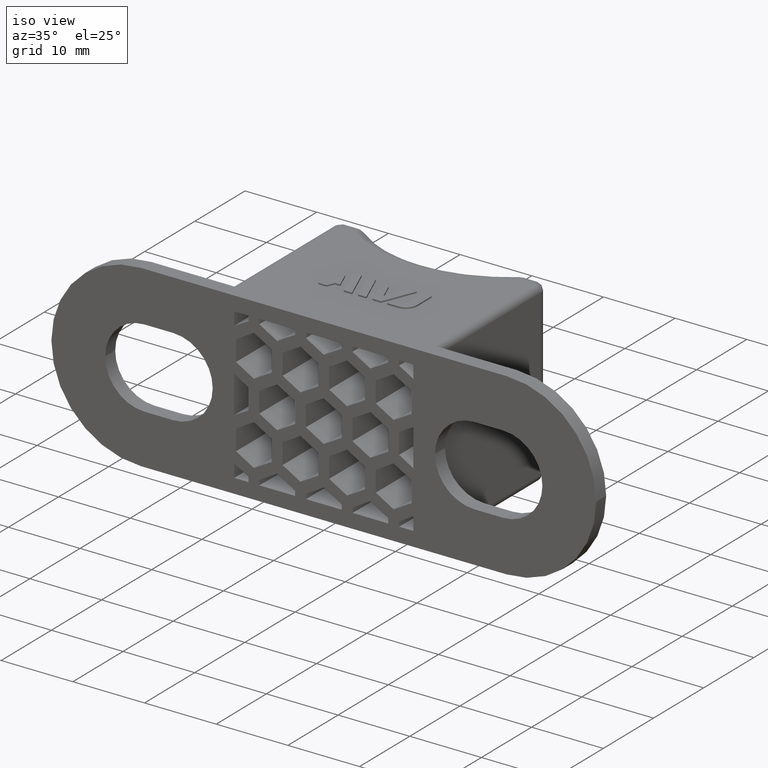
[diagram: clean part render]
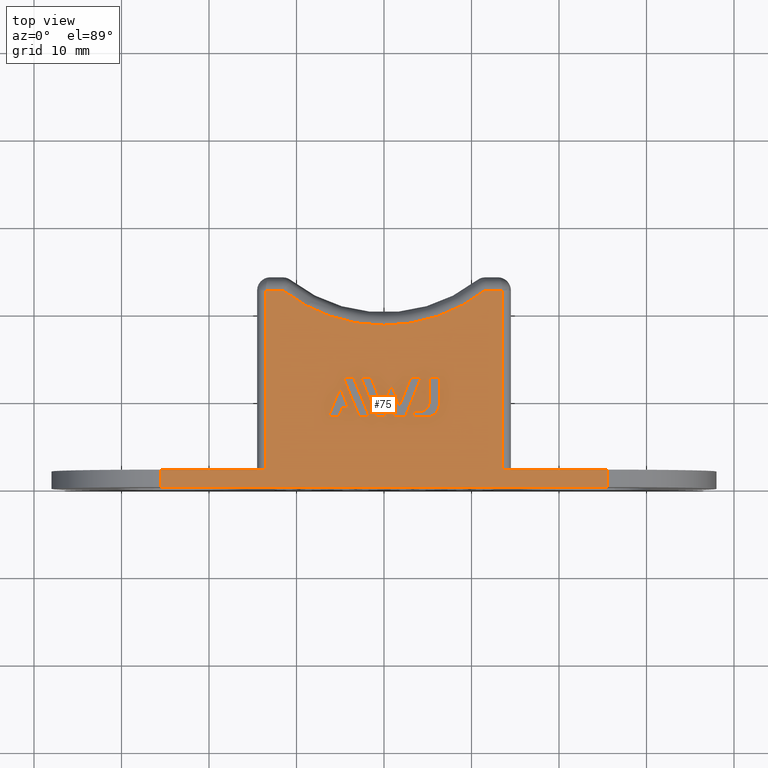
[diagram: tour spotlight — one face highlighted and labeled with its STEP entity id]
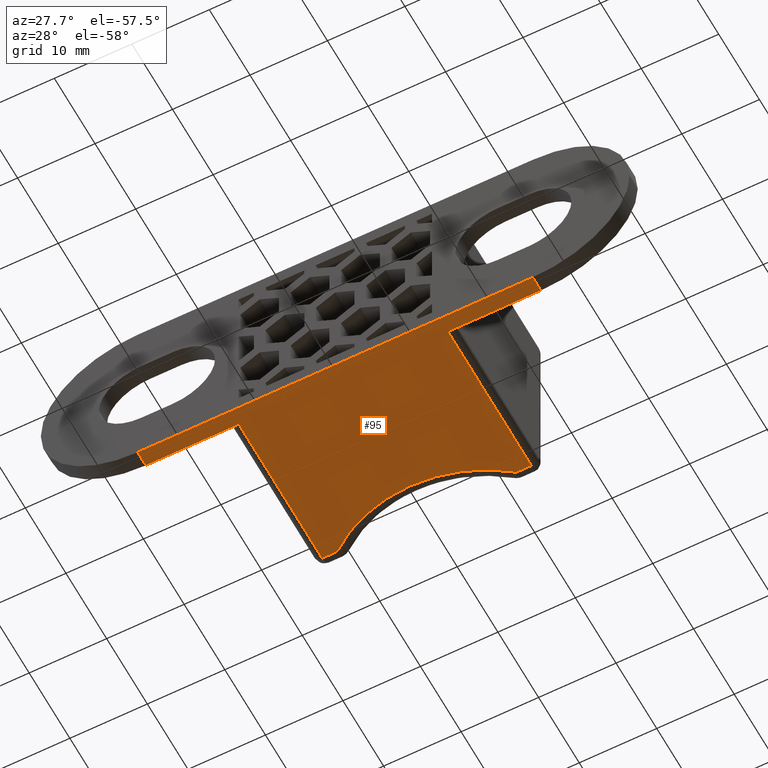
[diagram: tour spotlight — one face highlighted and labeled with its STEP entity id]
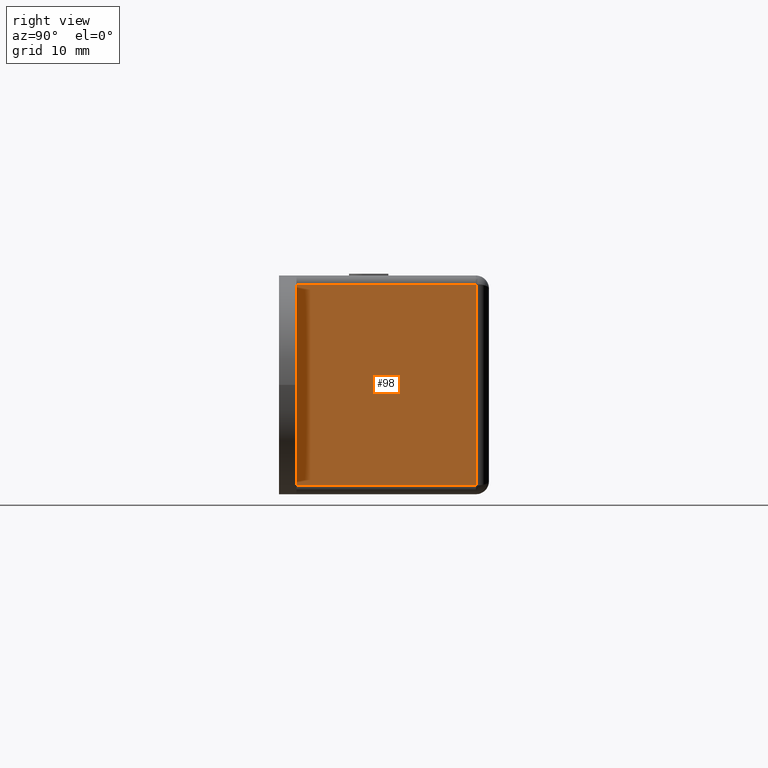
[diagram: tour spotlight — one face highlighted and labeled with its STEP entity id]
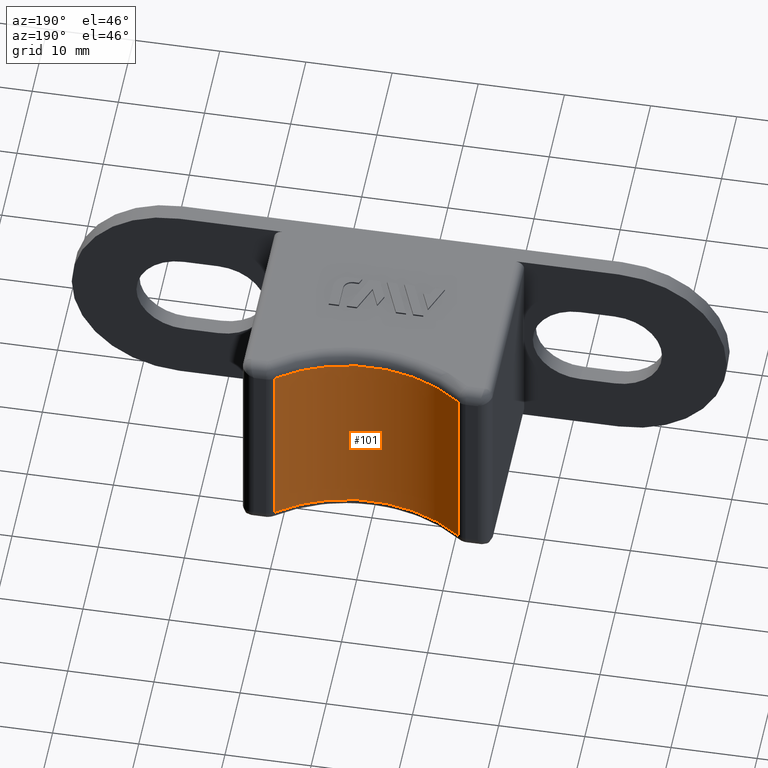
[diagram: tour spotlight — one face highlighted and labeled with its STEP entity id]
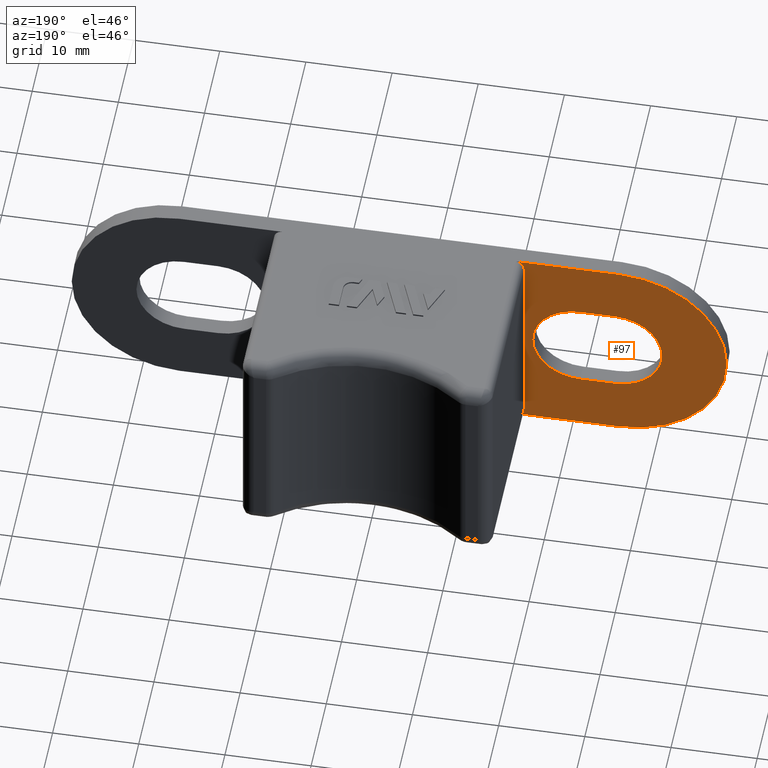
[diagram: tour spotlight — one face highlighted and labeled with its STEP entity id]
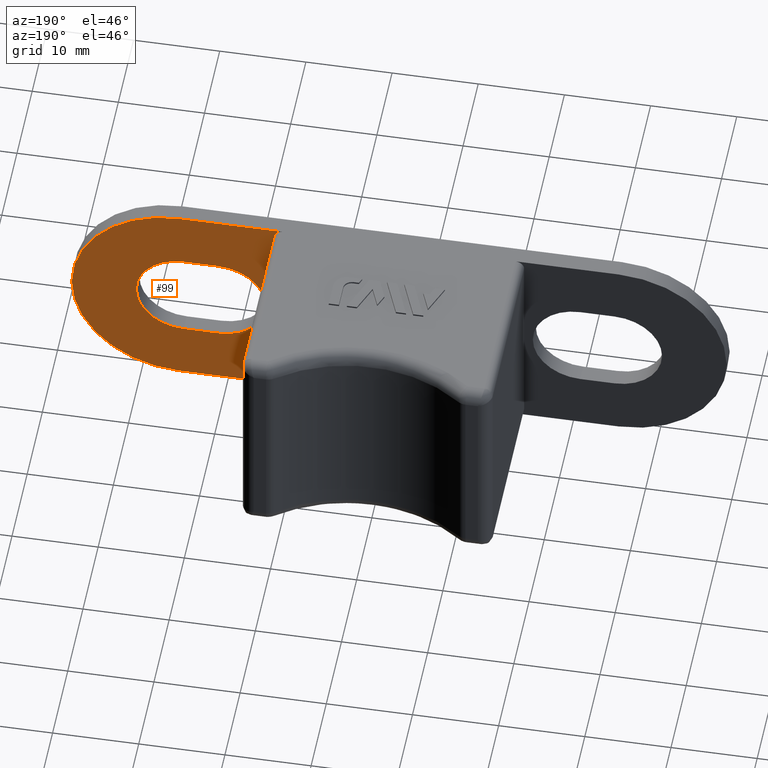
[diagram: tour spotlight — one face highlighted and labeled with its STEP entity id]
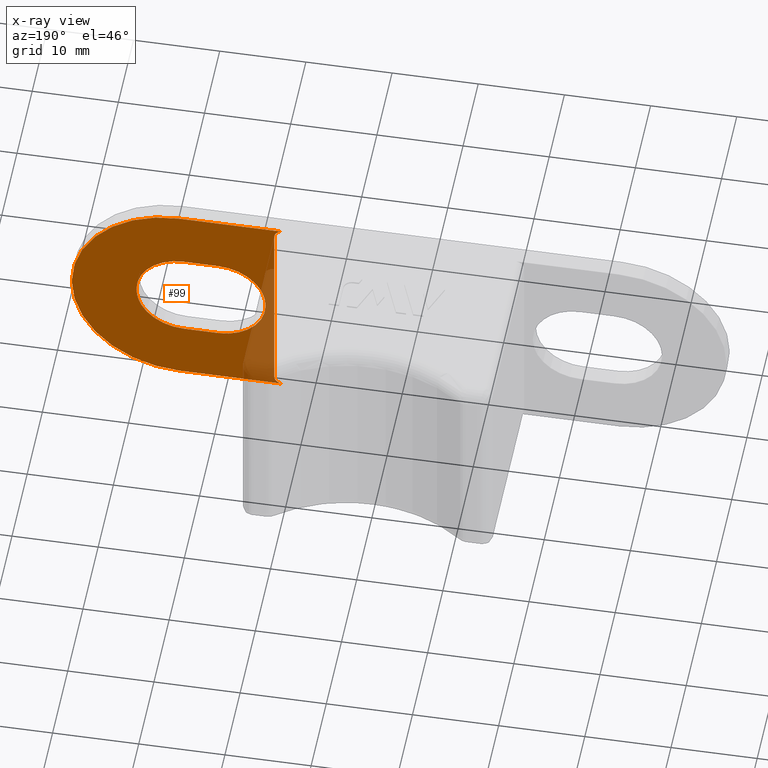
[diagram: x-ray of the same camera — body ghosted, this tour face saturated]
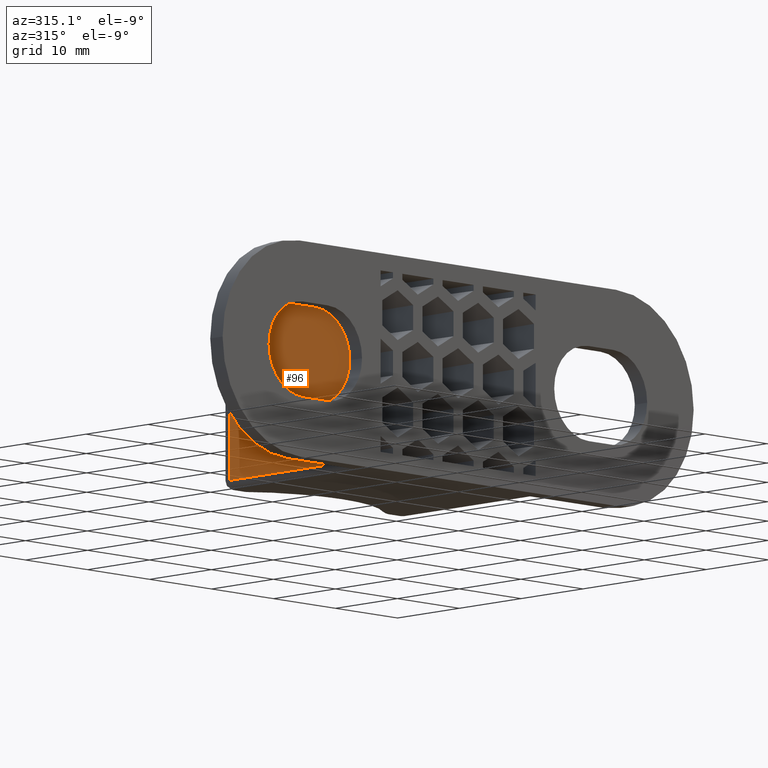
[diagram: tour spotlight — one face highlighted and labeled with its STEP entity id]
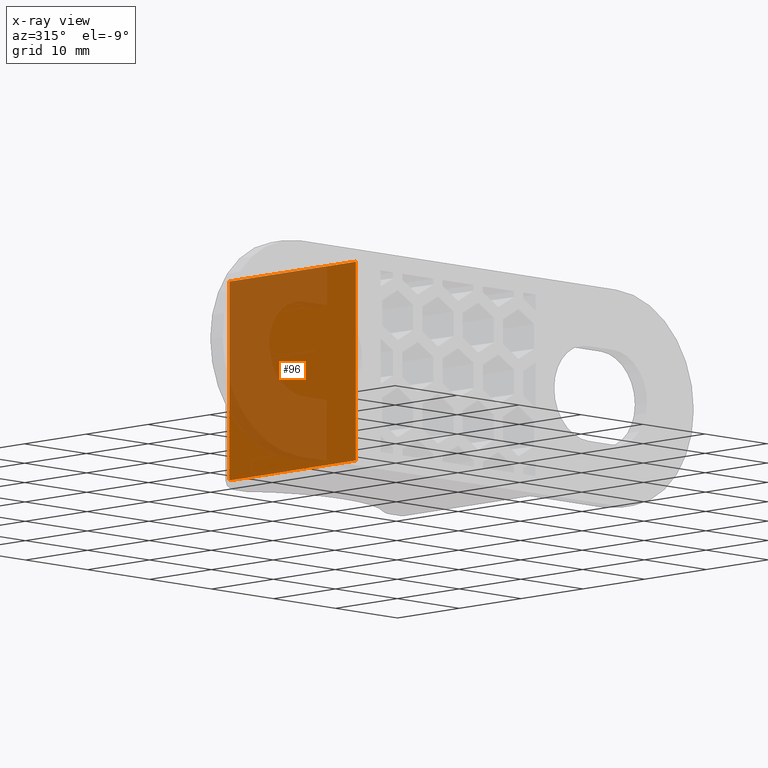
[diagram: x-ray of the same camera — body ghosted, this tour face saturated]
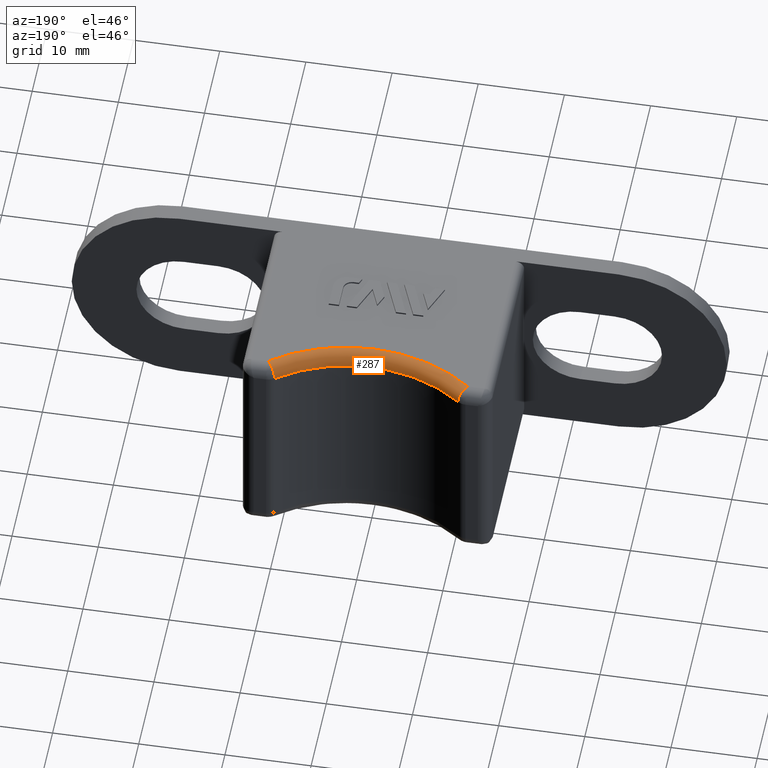
[diagram: tour spotlight — one face highlighted and labeled with its STEP entity id]
A machine part: a face-by-face anatomy tour. The part has 230 B-rep faces; the first image is the clean iso view, then the 8 largest visible faces are spotlighted one at a time (largest first), each with its STEP entity span.

Face 1 — top view, entity #75. In plain terms, the highlighted planar face has unit normal (0, 0, -1).
Definition (entity closure, byte-faithful):
#75 = ADVANCED_FACE( '', ( #306, #307, #308, #309, #310, #311 ), #312, .F. );
#306 = FACE_BOUND( '', #798, .T. );
#307 = FACE_BOUND( '', #799, .T. );
#308 = FACE_OUTER_BOUND( '', #800, .T. );
#309 = FACE_BOUND( '', #801, .T. );
#310 = FACE_BOUND( '', #802, .T. );
#311 = FACE_BOUND( '', #803, .T. );
#312 = PLANE( '', #804 );
#798 = EDGE_LOOP( '', ( #1818, #1819, #1820, #1821, #1822, #1823, #1824 ) );
#799 = EDGE_LOOP( '', ( #1825, #1826, #1827, #1828 ) );
#800 = EDGE_LOOP( '', ( #1829, #1830, #1831, #1832, #1833, #1834, #1835, #1836, #1837, #1838 ) );
#801 = EDGE_LOOP( '', ( #1839, #1840, #1841, #1842, #1843 ) );
#802 = EDGE_LOOP( '', ( #1844, #1845, #1846, #1847 ) );
#803 = EDGE_LOOP( '', ( #1848, #1849, #1850, #1851, #1852, #1853, #1854, #1855 ) );
#804 = AXIS2_PLACEMENT_3D( '', #1856, #1857, #1858 );
#1818 = ORIENTED_EDGE( '', *, *, #3648, .F. );
#1819 = ORIENTED_EDGE( '', *, *, #3649, .F. );
#1820 = ORIENTED_EDGE( '', *, *, #3650, .F. );
#1821 = ORIENTED_EDGE( '', *, *, #3651, .F. );
#1822 = ORIENTED_EDGE( '', *, *, #3652, .F. );
#1823 = ORIENTED_EDGE( '', *, *, #3653, .F. );
#1824 = ORIENTED_EDGE( '', *, *, #3654, .F. );
#1825 = ORIENTED_EDGE( '', *, *, #3655, .F. );
#1826 = ORIENTED_EDGE( '', *, *, #3656, .F. );
#1827 = ORIENTED_EDGE( '', *, *, #3657, .F. );
#1828 = ORIENTED_EDGE( '', *, *, #3658, .F. );
#1829 = ORIENTED_EDGE( '', *, *, #3659, .T. );
#1830 = ORIENTED_EDGE( '', *, *, #3660, .T. );
#1831 = ORIENTED_EDGE( '', *, *, #3661, .T. );
#1832 = ORIENTED_EDGE( '', *, *, #3662, .T. );
#1833 = ORIENTED_EDGE( '', *, *, #3663, .T. );
#1834 = ORIENTED_EDGE( '', *, *, #3664, .T. );
#1835 = ORIENTED_EDGE( '', *, *, #3665, .T. );
#1836 = ORIENTED_EDGE( '', *, *, #3666, .T. );
#1837 = ORIENTED_EDGE( '', *, *, #3667, .T. );
#1838 = ORIENTED_EDGE( '', *, *, #3668, .T. );
#1839 = ORIENTED_EDGE( '', *, *, #3669, .F. );
#1840 = ORIENTED_EDGE( '', *, *, #3670, .F. );
#1841 = ORIENTED_EDGE( '', *, *, #3671, .F. );
#1842 = ORIENTED_EDGE( '', *, *, #3672, .F. );
#1843 = ORIENTED_EDGE( '', *, *, #3673, .F. );
#1844 = ORIENTED_EDGE( '', *, *, #3674, .F. );
#1845 = ORIENTED_EDGE( '', *, *, #3675, .F. );
#1846 = ORIENTED_EDGE( '', *, *, #3676, .F. );
#1847 = ORIENTED_EDGE( '', *, *, #3677, .F. );
#1848 = ORIENTED_EDGE( '', *, *, #3678, .F. );
#1849 = ORIENTED_EDGE( '', *, *, #3679, .F. );
#1850 = ORIENTED_EDGE( '', *, *, #3680, .F. );
#1851 = ORIENTED_EDGE( '', *, *, #3681, .F. );
#1852 = ORIENTED_EDGE( '', *, *, #3682, .F. );
#1853 = ORIENTED_EDGE( '', *, *, #3683, .F. );
#1854 = ORIENTED_EDGE( '', *, *, #3684, .F. );
#1855 = ORIENTED_EDGE( '', *, *, #3685, .F. );
#1856 = CARTESIAN_POINT( '', ( 0.000000000000000, 37.2500000000000, 12.5000000000000 ) );
#1857 = DIRECTION( '', ( 0.000000000000000, 0.000000000000000, -1.00000000000000 ) );
#1858 = DIRECTION( '', ( 0.000000000000000, 1.00000000000000, 0.000000000000000 ) );
#3648 = EDGE_CURVE( '', #4224, #4225, #4226, .T. );
#3649 = EDGE_CURVE( '', #4227, #4224, #4228, .T. );
#3650 = EDGE_CURVE( '', #4229, #4227, #4230, .T. );
#3651 = EDGE_CURVE( '', #4231, #4229, #4232, .T. );
#3652 = EDGE_CURVE( '', #4233, #4231, #4234, .T. );
#3653 = EDGE_CURVE( '', #4235, #4233, #4236, .T. );
#3654 = EDGE_CURVE( '', #4225, #4235, #4237, .T. );
#3655 = EDGE_CURVE( '', #4238, #4239, #4240, .T. );
#3656 = EDGE_CURVE( '', #4241, #4238, #4242, .T. );
#3657 = EDGE_CURVE( '', #4243, #4241, #4244, .T. );
#3658 = EDGE_CURVE( '', #4239, #4243, #4245, .T. );
#3659 = EDGE_CURVE( '', #4246, #4247, #4248, .T. );
#3660 = EDGE_CURVE( '', #4247, #4249, #4250, .T. );
#3661 = EDGE_CURVE( '', #4249, #4251, #4252, .T. );
#3662 = EDGE_CURVE( '', #4251, #4253, #4254, .T. );
#3663 = EDGE_CURVE( '', #4253, #4255, #4256, .T. );
#3664 = EDGE_CURVE( '', #4255, #4257, #4258, .T. );
#3665 = EDGE_CURVE( '', #4257, #4259, #4260, .T. );
#3666 = EDGE_CURVE( '', #4259, #4261, #4262, .T. );
#3667 = EDGE_CURVE( '', #4261, #4263, #4264, .T. );
#3668 = EDGE_CURVE( '', #4263, #4246, #4265, .T. );
#3669 = EDGE_CURVE( '', #4266, #4267, #4268, .T. );
#3670 = EDGE_CURVE( '', #4269, #4266, #4270, .T. );
#3671 = EDGE_CURVE( '', #4271, #4269, #4272, .T. );
#3672 = EDGE_CURVE( '', #4273, #4271, #4274, .T. );
#3673 = EDGE_CURVE( '', #4267, #4273, #4275, .T. );
#3674 = EDGE_CURVE( '', #4276, #4277, #4278, .T. );
#3675 = EDGE_CURVE( '', #4279, #4276, #4280, .T. );
#3676 = EDGE_CURVE( '', #4281, #4279, #4282, .T. );
#3677 = EDGE_CURVE( '', #4277, #4281, #4283, .T. );
#3678 = EDGE_CURVE( '', #4284, #4285, #4286, .T. );
#3679 = EDGE_CURVE( '', #4287, #4284, #4288, .T. );
#3680 = EDGE_CURVE( '', #4289, #4287, #4290, .T. );
#3681 = EDGE_CURVE( '', #4291, #4289, #4292, .T. );
#3682 = EDGE_CURVE( '', #4293, #4291, #4294, .T. );
#3683 = EDGE_CURVE( '', #4295, #4293, #4296, .T. );
#3684 = EDGE_CURVE( '', #4297, #4295, #4298, .T. );
#3685 = EDGE_CURVE( '', #4285, #4297, #4299, .T. );
#4224 = VERTEX_POINT( '', #5176 );
#4225 = VERTEX_POINT( '', #5177 );
#4226 = LINE( '', #5178, #5179 );
#4227 = VERTEX_POINT( '', #5180 );
#4228 = LINE( '', #5181, #5182 );
#4229 = VERTEX_POINT( '', #5183 );
#4230 = LINE( '', #5184, #5185 );
#4231 = VERTEX_POINT( '', #5186 );
#4232 = LINE( '', #5187, #5188 );
#4233 = VERTEX_POINT( '', #5189 );
#4234 = LINE( '', #5190, #5191 );
#4235 = VERTEX_POINT( '', #5192 );
#4236 = LINE( '', #5193, #5194 );
#4237 = LINE( '', #5195, #5196 );
#4238 = VERTEX_POINT( '', #5197 );
#4239 = VERTEX_POINT( '', #5198 );
#4240 = LINE( '', #5199, #5200 );
#4241 = VERTEX_POINT( '', #5201 );
#4242 = LINE( '', #5202, #5203 );
#4243 = VERTEX_POINT( '', #5204 );
#4244 = LINE( '', #5205, #5206 );
#4245 = LINE( '', #5207, #5208 );
#4246 = VERTEX_POINT( '', #5209 );
#4247 = VERTEX_POINT( '', #5210 );
#4248 = CIRCLE( '', #5211, 18.7500000000000 );
#4249 = VERTEX_POINT( '', #5212 );
#4250 = LINE( '', #5213, #5214 );
#4251 = VERTEX_POINT( '', #5215 );
#4252 = LINE( '', #5216, #5217 );
#4253 = VERTEX_POINT( '', #5218 );
#4254 = LINE( '', #5219, #5220 );
#4255 = VERTEX_POINT( '', #5221 );
#4256 = LINE( '', #5222, #5223 );
#4257 = VERTEX_POINT( '', #5224 );
#4258 = LINE( '', #5225, #5226 );
#4259 = VERTEX_POINT( '', #5227 );
#4260 = LINE( '', #5228, #5229 );
#4261 = VERTEX_POINT( '', #5230 );
#4262 = LINE( '', #5231, #5232 );
#4263 = VERTEX_POINT( '', #5233 );
#4264 = LINE( '', #5234, #5235 );
#4265 = LINE( '', #5236, #5237 );
#4266 = VERTEX_POINT( '', #5238 );
#4267 = VERTEX_POINT( '', #5239 );
#4268 = LINE( '', #5240, #5241 );
#4269 = VERTEX_POINT( '', #5242 );
#4270 = LINE( '', #5243, #5244 );
#4271 = VERTEX_POINT( '', #5245 );
#4272 = LINE( '', #5246, #5247 );
#4273 = VERTEX_POINT( '', #5248 );
#4274 = LINE( '', #5249, #5250 );
#4275 = LINE( '', #5251, #5252 );
#4276 = VERTEX_POINT( '', #5253 );
#4277 = VERTEX_POINT( '', #5254 );
#4278 = LINE( '', #5255, #5256 );
#4279 = VERTEX_POINT( '', #5257 );
#4280 = LINE( '', #5258, #5259 );
#4281 = VERTEX_POINT( '', #5260 );
#4282 = LINE( '', #5261, #5262 );
#4283 = LINE( '', #5263, #5264 );
#4284 = VERTEX_POINT( '', #5265 );
#4285 = VERTEX_POINT( '', #5266 );
#4286 = CIRCLE( '', #5267, 1.50000000000000 );
#4287 = VERTEX_POINT( '', #5268 );
#4288 = LINE( '', #5269, #5270 );
#4289 = VERTEX_POINT( '', #5271 );
#4290 = LINE( '', #5272, #5273 );
#4291 = VERTEX_POINT( '', #5274 );
#4292 = LINE( '', #5275, #5276 );
#4293 = VERTEX_POINT( '', #5277 );
#4294 = CIRCLE( '', #5278, 0.999999999999997 );
#4295 = VERTEX_POINT( '', #5279 );
#4296 = LINE( '', #5280, #5281 );
#4297 = VERTEX_POINT( '', #5282 );
#4298 = LINE( '', #5283, #5284 );
#4299 = LINE( '', #5285, #5286 );
#5176 = CARTESIAN_POINT( '', ( 2.40489711829795, 8.00000000000000, 12.5000000000000 ) );
#5177 = CARTESIAN_POINT( '', ( 4.22159390166011, 12.4967077130809, 12.5000000000000 ) );
#5178 = CARTESIAN_POINT( '', ( 2.40489711829795, 8.00000000000000, 12.5000000000000 ) );
#5179 = VECTOR( '', #6570, 1000.00000000000 );
#5180 = CARTESIAN_POINT( '', ( 1.17656065381540, 8.00000000000000, 12.5000000000000 ) );
#5181 = CARTESIAN_POINT( '', ( 1.17656065381540, 8.00000000000000, 12.5000000000000 ) );
#5182 = VECTOR( '', #6571, 1000.00000000000 );
#5183 = CARTESIAN_POINT( '', ( 0.250796616378179, 10.2909463051131, 12.5000000000000 ) );
#5184 = CARTESIAN_POINT( '', ( 0.250796616378178, 10.2909463051131, 12.5000000000000 ) );
#5185 = VECTOR( '', #6572, 1000.00000000000 );
#5186 = CARTESIAN_POINT( '', ( 0.831793978898428, 11.7292171844870, 12.5000000000000 ) );
#5187 = CARTESIAN_POINT( '', ( 0.831793978898429, 11.7292171844869, 12.5000000000000 ) );
#5188 = VECTOR( '', #6573, 1000.00000000000 );
#5189 = CARTESIAN_POINT( '', ( 1.79060116130350, 9.35619645562918, 12.5000000000000 ) );
#5190 = CARTESIAN_POINT( '', ( 1.79060116130350, 9.35619645562919, 12.5000000000000 ) );
#5191 = VECTOR( '', #6574, 1000.00000000000 );
#5192 = CARTESIAN_POINT( '', ( 3.05959917661961, 12.4967077130809, 12.5000000000000 ) );
#5193 = CARTESIAN_POINT( '', ( 3.05959917661961, 12.4967077130809, 12.5000000000000 ) );
#5194 = VECTOR( '', #6575, 1000.00000000000 );
#5195 = CARTESIAN_POINT( '', ( 4.22159390166011, 12.4967077130809, 12.5000000000000 ) );
#5196 = VECTOR( '', #6576, 1000.00000000000 );
#5197 = CARTESIAN_POINT( '', ( -1.65762156620353, 8.00000000000000, 12.5000000000000 ) );
#5198 = CARTESIAN_POINT( '', ( -3.47460385195514, 12.4967077130809, 12.5000000000000 ) );
#5199 = CARTESIAN_POINT( '', ( -1.65762156620353, 8.00000000000000, 12.5000000000000 ) );
#5200 = VECTOR( '', #6577, 1000.00000000000 );
#5201 = CARTESIAN_POINT( '', ( -2.81951861937395, 8.00000000000000, 12.5000000000000 ) );
#5202 = CARTESIAN_POINT( '', ( -2.81951861937395, 8.00000000000000, 12.5000000000000 ) );
#5203 = VECTOR( '', #6578, 1000.00000000000 );
#5204 = CARTESIAN_POINT( '', ( -4.63624545561922, 12.4967077130809, 12.5000000000000 ) );
#5205 = CARTESIAN_POINT( '', ( -4.63624545561922, 12.4967077130809, 12.5000000000000 ) );
#5206 = VECTOR( '', #6579, 1000.00000000000 );
#5207 = CARTESIAN_POINT( '', ( -3.47460385195514, 12.4967077130809, 12.5000000000000 ) );
#5208 = VECTOR( '', #6580, 1000.00000000000 );
#5209 = CARTESIAN_POINT( '', ( 11.5758369027905, 22.5000000000000, 12.5000000000000 ) );
#5210 = CARTESIAN_POINT( '', ( -11.5758369027905, 22.5000000000002, 12.5000000000000 ) );
#5211 = AXIS2_PLACEMENT_3D( '', #6581, #6582, #6583 );
#5212 = CARTESIAN_POINT( '', ( -13.5000000000000, 22.5000000000000, 12.5000000000000 ) );
#5213 = CARTESIAN_POINT( '', ( -13.5000000000000, 22.5000000000000, 12.5000000000000 ) );
#5214 = VECTOR( '', #6584, 1000.00000000000 );
#5215 = CARTESIAN_POINT( '', ( -13.5000000000000, 1.99999999999999, 12.5000000000000 ) );
#5216 = CARTESIAN_POINT( '', ( -13.5000000000000, 1.99999999999999, 12.5000000000000 ) );
#5217 = VECTOR( '', #6585, 1000.00000000000 );
#5218 = CARTESIAN_POINT( '', ( -25.5000000000000, 1.99999999999999, 12.5000000000000 ) );
#5219 = CARTESIAN_POINT( '', ( -14.5000000000000, 1.99999999999999, 12.5000000000000 ) );
#5220 = VECTOR( '', #6586, 1000.00000000000 );
#5221 = CARTESIAN_POINT( '', ( -25.5000000000000, -6.93889390390723E-015, 12.5000000000000 ) );
#5222 = CARTESIAN_POINT( '', ( -25.5000000000000, -6.93889390390723E-015, 12.5000000000000 ) );
#5223 = VECTOR( '', #6587, 1000.00000000000 );
#5224 = CARTESIAN_POINT( '', ( 25.5000000000000, -6.93889390390723E-015, 12.5000000000000 ) );
#5225 = CARTESIAN_POINT( '', ( -38.0000000000000, -6.93889390390723E-015, 12.5000000000000 ) );
#5226 = VECTOR( '', #6588, 1000.00000000000 );
#5227 = CARTESIAN_POINT( '', ( 25.5000000000000, 1.99999999999999, 12.5000000000000 ) );
#5228 = CARTESIAN_POINT( '', ( 25.5000000000000, 1.99999999999999, 12.5000000000000 ) );
#5229 = VECTOR( '', #6589, 1000.00000000000 );
#5230 = CARTESIAN_POINT( '', ( 13.5000000000000, 1.99999999999999, 12.5000000000000 ) );
#5231 = CARTESIAN_POINT( '', ( 38.0000000000000, 1.99999999999999, 12.5000000000000 ) );
#5232 = VECTOR( '', #6590, 1000.00000000000 );
#5233 = CARTESIAN_POINT( '', ( 13.5000000000000, 22.5000000000000, 12.5000000000000 ) );
#5234 = CARTESIAN_POINT( '', ( 13.5000000000000, 24.0000000000000, 12.5000000000000 ) );
#5235 = VECTOR( '', #6591, 1000.00000000000 );
#5236 = CARTESIAN_POINT( '', ( 11.0453610171873, 22.5000000000000, 12.5000000000000 ) );
#5237 = VECTOR( '', #6592, 1000.00000000000 );
#5238 = CARTESIAN_POINT( '', ( -5.19199839633592, 8.00000000000000, 12.5000000000000 ) );
#5239 = CARTESIAN_POINT( '', ( -4.77208448722876, 9.03856753415103, 12.5000000000000 ) );
#5240 = CARTESIAN_POINT( '', ( -5.19199839633592, 8.00000000000000, 12.5000000000000 ) );
#5241 = VECTOR( '', #6593, 1000.00000000000 );
#5242 = CARTESIAN_POINT( '', ( -6.35364000000000, 8.00000000000000, 12.5000000000000 ) );
#5243 = CARTESIAN_POINT( '', ( -6.35364000000000, 8.00000000000000, 12.5000000000000 ) );
#5244 = VECTOR( '', #6594, 1000.00000000000 );
#5245 = CARTESIAN_POINT( '', ( -4.99163582471184, 11.3715127433957, 12.5000000000000 ) );
#5246 = CARTESIAN_POINT( '', ( -4.99163582471184, 11.3715127433957, 12.5000000000000 ) );
#5247 = VECTOR( '', #6595, 1000.00000000000 );
#5248 = CARTESIAN_POINT( '', ( -4.04950047920620, 9.03856753415103, 12.5000000000000 ) );
#5249 = CARTESIAN_POINT( '', ( -4.04950047920620, 9.03856753415103, 12.5000000000000 ) );
#5250 = VECTOR( '', #6596, 1000.00000000000 );
#5251 = CARTESIAN_POINT( '', ( -4.77208448722876, 9.03856753415103, 12.5000000000000 ) );
#5252 = VECTOR( '', #6597, 1000.00000000000 );
#5253 = CARTESIAN_POINT( '', ( 0.340474419546954, 8.00000000000000, 12.5000000000000 ) );
#5254 = CARTESIAN_POINT( '', ( -1.47650786620465, 12.4967077130809, 12.5000000000000 ) );
#5255 = CARTESIAN_POINT( '', ( 0.340474419546954, 8.00000000000000, 12.5000000000000 ) );
#5256 = VECTOR( '', #6598, 1000.00000000000 );
#5257 = CARTESIAN_POINT( '', ( -0.821505279051991, 8.00000000000000, 12.5000000000000 ) );
#5258 = CARTESIAN_POINT( '', ( -0.821505279051992, 8.00000000000000, 12.5000000000000 ) );
#5259 = VECTOR( '', #6599, 1000.00000000000 );
#5260 = CARTESIAN_POINT( '', ( -2.63848756480360, 12.4967077130809, 12.5000000000000 ) );
#5261 = CARTESIAN_POINT( '', ( -2.63848756480360, 12.4967077130809, 12.5000000000000 ) );
#5262 = VECTOR( '', #6600, 1000.00000000000 );
#5263 = CARTESIAN_POINT( '', ( -1.47650786620465, 12.4967077130809, 12.5000000000000 ) );
#5264 = VECTOR( '', #6601, 1000.00000000000 );
#5265 = CARTESIAN_POINT( '', ( 4.81907477182051, 8.00000000000000, 12.5000000000000 ) );
#5266 = CARTESIAN_POINT( '', ( 6.31907477182050, 9.50000000000000, 12.5000000000000 ) );
#5267 = AXIS2_PLACEMENT_3D( '', #6602, #6603, #6604 );
#5268 = CARTESIAN_POINT( '', ( 3.24098335256638, 8.00000000000000, 12.5000000000000 ) );
#5269 = CARTESIAN_POINT( '', ( 3.24098335256638, 8.00000000000000, 12.5000000000000 ) );
#5270 = VECTOR( '', #6605, 1000.00000000000 );
#5271 = CARTESIAN_POINT( '', ( 3.50517861036021, 8.65390620930045, 12.5000000000000 ) );
#5272 = CARTESIAN_POINT( '', ( 3.50517861036022, 8.65390620930045, 12.5000000000000 ) );
#5273 = VECTOR( '', #6606, 1000.00000000000 );
#5274 = CARTESIAN_POINT( '', ( 4.14390185782692, 8.65390620930044, 12.5000000000000 ) );
#5275 = CARTESIAN_POINT( '', ( 4.14390185782692, 8.65390620930045, 12.5000000000000 ) );
#5276 = VECTOR( '', #6607, 1000.00000000000 );
#5277 = CARTESIAN_POINT( '', ( 5.14390185782692, 9.65390620930044, 12.5000000000000 ) );
#5278 = AXIS2_PLACEMENT_3D( '', #6608, #6609, #6610 );
#5279 = CARTESIAN_POINT( '', ( 5.14390185782692, 12.4967077130809, 12.5000000000000 ) );
#5280 = CARTESIAN_POINT( '', ( 5.14390185782692, 12.4967077130809, 12.5000000000000 ) );
#5281 = VECTOR( '', #6611, 1000.00000000000 );
#5282 = CARTESIAN_POINT( '', ( 6.31907477182050, 12.4967077130809, 12.5000000000000 ) );
#5283 = CARTESIAN_POINT( '', ( 6.31907477182050, 12.4967077130809, 12.5000000000000 ) );
#5284 = VECTOR( '', #6612, 1000.00000000000 );
#5285 = CARTESIAN_POINT( '', ( 6.31907477182050, 9.50000000000000, 12.5000000000000 ) );
#5286 = VECTOR( '', #6613, 1000.00000000000 );
#6570 = DIRECTION( '', ( 0.374590451773198, 0.927190376050330, 0.000000000000000 ) );
#6571 = DIRECTION( '', ( 1.00000000000000, 0.000000000000000, 0.000000000000000 ) );
#6572 = DIRECTION( '', ( 0.374662832411421, -0.927161130553612, 0.000000000000000 ) );
#6573 = DIRECTION( '', ( -0.374550179126525, -0.927206645422846, 0.000000000000000 ) );
#6574 = DIRECTION( '', ( -0.374621565025663, 0.927177805503196, 0.000000000000000 ) );
#6575 = DIRECTION( '', ( -0.374644435760503, -0.927168564368796, 0.000000000000000 ) );
#6576 = DIRECTION( '', ( -1.00000000000000, 0.000000000000000, 0.000000000000000 ) );
#6577 = DIRECTION( '', ( -0.374641058409019, 0.927169929060563, 0.000000000000000 ) );
#6578 = DIRECTION( '', ( 1.00000000000000, 0.000000000000000, 0.000000000000000 ) );
#6579 = DIRECTION( '', ( 0.374595778945159, -0.927188223823226, 0.000000000000000 ) );
#6580 = DIRECTION( '', ( -1.00000000000000, 0.000000000000000, 0.000000000000000 ) );
#6581 = CARTESIAN_POINT( '', ( 0.000000000000000, 37.2500000000000, 12.5000000000000 ) );
#6582 = DIRECTION( '', ( 0.000000000000000, 0.000000000000000, -1.00000000000000 ) );
#6583 = DIRECTION( '', ( -1.00000000000000, 0.000000000000000, 0.000000000000000 ) );
#6584 = DIRECTION( '', ( -1.00000000000000, 0.000000000000000, 0.000000000000000 ) );
#6585 = DIRECTION( '', ( -6.07153216591882E-017, -1.00000000000000, 0.000000000000000 ) );
#6586 = DIRECTION( '', ( -1.00000000000000, 0.000000000000000, 0.000000000000000 ) );
#6587 = DIRECTION( '', ( -6.93889390390723E-017, -1.00000000000000, 0.000000000000000 ) );
#6588 = DIRECTION( '', ( 1.00000000000000, 0.000000000000000, 0.000000000000000 ) );
#6589 = DIRECTION( '', ( 6.93889390390723E-017, 1.00000000000000, 0.000000000000000 ) );
#6590 = DIRECTION( '', ( -1.00000000000000, 0.000000000000000, 0.000000000000000 ) );
#6591 = DIRECTION( '', ( 6.07153216591882E-017, 1.00000000000000, 0.000000000000000 ) );
#6592 = DIRECTION( '', ( -1.00000000000000, 0.000000000000000, 0.000000000000000 ) );
#6593 = DIRECTION( '', ( 0.374840934415178, 0.927089140205383, 0.000000000000000 ) );
#6594 = DIRECTION( '', ( 1.00000000000000, 5.55111512312578E-017, 0.000000000000000 ) );
#6595 = DIRECTION( '', ( -0.374565126786346, -0.927200607094025, 0.000000000000000 ) );
#6596 = DIRECTION( '', ( -0.374457717202846, 0.927243990558706, 0.000000000000000 ) );
#6597 = DIRECTION( '', ( 1.00000000000000, 0.000000000000000, 0.000000000000000 ) );
#6598 = DIRECTION( '', ( -0.374641058409019, 0.927169929060563, 0.000000000000000 ) );
#6599 = DIRECTION( '', ( 1.00000000000000, -2.22044604925031E-016, 0.000000000000000 ) );
#6600 = DIRECTION( '', ( 0.374641058409019, -0.927169929060563, 0.000000000000000 ) );
#6601 = DIRECTION( '', ( -1.00000000000000, 2.22044604925031E-016, 0.000000000000000 ) );
#6602 = CARTESIAN_POINT( '', ( 4.81907477182050, 9.50000000000000, 12.5000000000000 ) );
#6603 = DIRECTION( '', ( 0.000000000000000, 0.000000000000000, 1.00000000000000 ) );
#6604 = DIRECTION( '', ( 0.000000000000000, -1.00000000000000, 0.000000000000000 ) );
#6605 = DIRECTION( '', ( 1.00000000000000, 0.000000000000000, 0.000000000000000 ) );
#6606 = DIRECTION( '', ( -0.374606593415912, -0.927183854566787, 0.000000000000000 ) );
#6607 = DIRECTION( '', ( -1.00000000000000, 0.000000000000000, 0.000000000000000 ) );
#6608 = CARTESIAN_POINT( '', ( 4.14390185782692, 9.65390620930044, 12.5000000000000 ) );
#6609 = DIRECTION( '', ( 0.000000000000000, 0.000000000000000, -1.00000000000000 ) );
#6610 = DIRECTION( '', ( 1.00000000000000, 0.000000000000000, 0.000000000000000 ) );
#6611 = DIRECTION( '', ( -6.07153216591882E-017, -1.00000000000000, 0.000000000000000 ) );
#6612 = DIRECTION( '', ( -1.00000000000000, 0.000000000000000, 0.000000000000000 ) );
#6613 = DIRECTION( '', ( 6.07153216591882E-017, 1.00000000000000, 0.000000000000000 ) );

Face 2 — auxiliary view, entity #95. In plain terms, the highlighted planar face has unit normal (0, 0, -1).
Definition (entity closure, byte-faithful):
#95 = ADVANCED_FACE( '', ( #376 ), #377, .T. );
#376 = FACE_OUTER_BOUND( '', #1132, .T. );
#377 = PLANE( '', #1133 );
#1132 = EDGE_LOOP( '', ( #2121, #2122, #2123, #2124, #2125, #2126, #2127, #2128, #2129, #2130 ) );
#1133 = AXIS2_PLACEMENT_3D( '', #2131, #2132, #2133 );
#2121 = ORIENTED_EDGE( '', *, *, #3867, .T. );
#2122 = ORIENTED_EDGE( '', *, *, #3846, .T. );
#2123 = ORIENTED_EDGE( '', *, *, #3868, .T. );
#2124 = ORIENTED_EDGE( '', *, *, #3869, .T. );
#2125 = ORIENTED_EDGE( '', *, *, #3870, .T. );
#2126 = ORIENTED_EDGE( '', *, *, #3871, .F. );
#2127 = ORIENTED_EDGE( '', *, *, #3872, .T. );
#2128 = ORIENTED_EDGE( '', *, *, #3748, .F. );
#2129 = ORIENTED_EDGE( '', *, *, #3866, .T. );
#2130 = ORIENTED_EDGE( '', *, *, #3873, .F. );
#2131 = CARTESIAN_POINT( '', ( 0.000000000000000, 37.2500000000000, -12.5000000000000 ) );
#2132 = DIRECTION( '', ( 0.000000000000000, 0.000000000000000, -1.00000000000000 ) );
#2133 = DIRECTION( '', ( 0.000000000000000, 1.00000000000000, 0.000000000000000 ) );
#3748 = EDGE_CURVE( '', #4422, #4424, #4425, .T. );
#3846 = EDGE_CURVE( '', #4605, #4609, #4611, .F. );
#3866 = EDGE_CURVE( '', #4422, #4644, #4646, .F. );
#3867 = EDGE_CURVE( '', #4647, #4605, #4648, .F. );
#3868 = EDGE_CURVE( '', #4609, #4649, #4650, .F. );
#3869 = EDGE_CURVE( '', #4649, #4651, #4652, .F. );
#3870 = EDGE_CURVE( '', #4651, #4653, #4654, .F. );
#3871 = EDGE_CURVE( '', #4655, #4653, #4656, .T. );
#3872 = EDGE_CURVE( '', #4655, #4424, #4657, .F. );
#3873 = EDGE_CURVE( '', #4647, #4644, #4658, .T. );
#4422 = VERTEX_POINT( '', #5465 );
#4424 = VERTEX_POINT( '', #5467 );
#4425 = LINE( '', #5468, #5469 );
#4605 = VERTEX_POINT( '', #5733 );
#4609 = VERTEX_POINT( '', #5737 );
#4611 = LINE( '', #5739, #5740 );
#4644 = VERTEX_POINT( '', #5787 );
#4646 = LINE( '', #5789, #5790 );
#4647 = VERTEX_POINT( '', #5791 );
#4648 = LINE( '', #5792, #5793 );
#4649 = VERTEX_POINT( '', #5794 );
#4650 = CIRCLE( '', #5795, 18.7500000000000 );
#4651 = VERTEX_POINT( '', #5796 );
#4652 = LINE( '', #5797, #5798 );
#4653 = VERTEX_POINT( '', #5799 );
#4654 = LINE( '', #5800, #5801 );
#4655 = VERTEX_POINT( '', #5802 );
#4656 = LINE( '', #5803, #5804 );
#4657 = LINE( '', #5805, #5806 );
#4658 = LINE( '', #5807, #5808 );
#5465 = CARTESIAN_POINT( '', ( -25.5000000000000, -6.93889390390723E-015, -12.5000000000000 ) );
#5467 = CARTESIAN_POINT( '', ( 25.5000000000000, -6.93889390390723E-015, -12.5000000000000 ) );
#5468 = CARTESIAN_POINT( '', ( -38.0000000000000, -6.93889390390723E-015, -12.5000000000000 ) );
#5469 = VECTOR( '', #6688, 1000.00000000000 );
#5733 = CARTESIAN_POINT( '', ( -13.5000000000000, 22.5000000000000, -12.5000000000000 ) );
#5737 = CARTESIAN_POINT( '', ( -11.5758369027905, 22.5000000000002, -12.5000000000000 ) );
#5739 = CARTESIAN_POINT( '', ( 0.000000000000000, 22.5000000000000, -12.5000000000000 ) );
#5740 = VECTOR( '', #6812, 1000.00000000000 );
#5787 = CARTESIAN_POINT( '', ( -25.5000000000000, 1.99999999999999, -12.5000000000000 ) );
#5789 = CARTESIAN_POINT( '', ( -25.5000000000000, 37.2500000000000, -12.5000000000000 ) );
#5790 = VECTOR( '', #6842, 1000.00000000000 );
#5791 = CARTESIAN_POINT( '', ( -13.5000000000000, 1.99999999999999, -12.5000000000000 ) );
#5792 = CARTESIAN_POINT( '', ( -13.5000000000000, 37.2500000000000, -12.5000000000000 ) );
#5793 = VECTOR( '', #6843, 1000.00000000000 );
#5794 = CARTESIAN_POINT( '', ( 11.5758369027905, 22.5000000000000, -12.5000000000000 ) );
#5795 = AXIS2_PLACEMENT_3D( '', #6844, #6845, #6846 );
#5796 = CARTESIAN_POINT( '', ( 13.5000000000000, 22.5000000000000, -12.5000000000000 ) );
#5797 = CARTESIAN_POINT( '', ( 0.000000000000000, 22.5000000000000, -12.5000000000000 ) );
#5798 = VECTOR( '', #6847, 1000.00000000000 );
#5799 = CARTESIAN_POINT( '', ( 13.5000000000000, 1.99999999999999, -12.5000000000000 ) );
#5800 = CARTESIAN_POINT( '', ( 13.5000000000000, 37.2500000000000, -12.5000000000000 ) );
#5801 = VECTOR( '', #6848, 1000.00000000000 );
#5802 = CARTESIAN_POINT( '', ( 25.5000000000000, 1.99999999999999, -12.5000000000000 ) );
#5803 = CARTESIAN_POINT( '', ( 38.0000000000000, 1.99999999999999, -12.5000000000000 ) );
#5804 = VECTOR( '', #6849, 1000.00000000000 );
#5805 = CARTESIAN_POINT( '', ( 25.5000000000000, 37.2500000000000, -12.5000000000000 ) );
#5806 = VECTOR( '', #6850, 1000.00000000000 );
#5807 = CARTESIAN_POINT( '', ( -14.5000000000000, 1.99999999999999, -12.5000000000000 ) );
#5808 = VECTOR( '', #6851, 1000.00000000000 );
#6688 = DIRECTION( '', ( 1.00000000000000, 0.000000000000000, 0.000000000000000 ) );
#6812 = DIRECTION( '', ( -1.00000000000000, 0.000000000000000, 0.000000000000000 ) );
#6842 = DIRECTION( '', ( -6.93889390390723E-017, -1.00000000000000, 0.000000000000000 ) );
#6843 = DIRECTION( '', ( -6.07153216591882E-017, -1.00000000000000, 0.000000000000000 ) );
#6844 = CARTESIAN_POINT( '', ( 0.000000000000000, 37.2500000000000, -12.5000000000000 ) );
#6845 = DIRECTION( '', ( 0.000000000000000, 0.000000000000000, -1.00000000000000 ) );
#6846 = DIRECTION( '', ( -1.00000000000000, 0.000000000000000, 0.000000000000000 ) );
#6847 = DIRECTION( '', ( -1.00000000000000, 0.000000000000000, 0.000000000000000 ) );
#6848 = DIRECTION( '', ( 6.07153216591882E-017, 1.00000000000000, 0.000000000000000 ) );
#6849 = DIRECTION( '', ( -1.00000000000000, 0.000000000000000, 0.000000000000000 ) );
#6850 = DIRECTION( '', ( 6.93889390390723E-017, 1.00000000000000, 0.000000000000000 ) );
#6851 = DIRECTION( '', ( -1.00000000000000, 0.000000000000000, 0.000000000000000 ) );

Face 3 — right view, entity #98. In plain terms, the highlighted planar face has unit normal (1, -0, 0).
Definition (entity closure, byte-faithful):
#98 = ADVANCED_FACE( '', ( #383 ), #384, .T. );
#383 = FACE_OUTER_BOUND( '', #1139, .T. );
#384 = PLANE( '', #1140 );
#1139 = EDGE_LOOP( '', ( #2157, #2158, #2159, #2160 ) );
#1140 = AXIS2_PLACEMENT_3D( '', #2161, #2162, #2163 );
#2157 = ORIENTED_EDGE( '', *, *, #3886, .T. );
#2158 = ORIENTED_EDGE( '', *, *, #3887, .T. );
#2159 = ORIENTED_EDGE( '', *, *, #3888, .T. );
#2160 = ORIENTED_EDGE( '', *, *, #3889, .F. );
#2161 = CARTESIAN_POINT( '', ( 14.5000000000000, 1.99999999999999, -12.5000000000000 ) );
#2162 = DIRECTION( '', ( 1.00000000000000, -6.07153216591882E-017, 0.000000000000000 ) );
#2163 = DIRECTION( '', ( -6.07153216591882E-017, -1.00000000000000, 0.000000000000000 ) );
#3886 = EDGE_CURVE( '', #4679, #4680, #4681, .T. );
#3887 = EDGE_CURVE( '', #4680, #4682, #4683, .T. );
#3888 = EDGE_CURVE( '', #4682, #4684, #4685, .F. );
#3889 = EDGE_CURVE( '', #4679, #4684, #4686, .T. );
#4679 = VERTEX_POINT( '', #5834 );
#4680 = VERTEX_POINT( '', #5835 );
#4681 = LINE( '', #5836, #5837 );
#4682 = VERTEX_POINT( '', #5838 );
#4683 = LINE( '', #5839, #5840 );
#4684 = VERTEX_POINT( '', #5841 );
#4685 = LINE( '', #5842, #5843 );
#4686 = LINE( '', #5844, #5845 );
#5834 = CARTESIAN_POINT( '', ( 14.5000000000000, 1.99999999999999, -11.5000000000000 ) );
#5835 = CARTESIAN_POINT( '', ( 14.5000000000000, 22.5000000000000, -11.5000000000000 ) );
#5836 = CARTESIAN_POINT( '', ( 14.5000000000000, 1.99999999999999, -11.5000000000000 ) );
#5837 = VECTOR( '', #6878, 1000.00000000000 );
#5838 = CARTESIAN_POINT( '', ( 14.5000000000000, 22.5000000000000, 11.5000000000000 ) );
#5839 = CARTESIAN_POINT( '', ( 14.5000000000000, 22.5000000000000, -12.5000000000000 ) );
#5840 = VECTOR( '', #6879, 1000.00000000000 );
#5841 = CARTESIAN_POINT( '', ( 14.5000000000000, 1.99999999999999, 11.5000000000000 ) );
#5842 = CARTESIAN_POINT( '', ( 14.5000000000000, 1.99999999999999, 11.5000000000000 ) );
#5843 = VECTOR( '', #6880, 1000.00000000000 );
#5844 = CARTESIAN_POINT( '', ( 14.5000000000000, 1.99999999999999, -12.5000000000000 ) );
#5845 = VECTOR( '', #6881, 1000.00000000000 );
#6878 = DIRECTION( '', ( 6.07153216591882E-017, 1.00000000000000, 0.000000000000000 ) );
#6879 = DIRECTION( '', ( 0.000000000000000, 0.000000000000000, 1.00000000000000 ) );
#6880 = DIRECTION( '', ( 6.07153216591882E-017, 1.00000000000000, 0.000000000000000 ) );
#6881 = DIRECTION( '', ( 0.000000000000000, 0.000000000000000, 1.00000000000000 ) );

Face 4 — auxiliary view, entity #101. In plain terms, the highlighted cylindrical surface (partial cylindrical patch) has radius 17.25 mm, axis along (0, 0, -1).
Definition (entity closure, byte-faithful):
#101 = ADVANCED_FACE( '', ( #390 ), #391, .F. );
#390 = FACE_OUTER_BOUND( '', #1146, .T. );
#391 = CYLINDRICAL_SURFACE( '', #1147, 17.2500000000000 );
#1146 = EDGE_LOOP( '', ( #2187, #2188, #2189, #2190 ) );
#1147 = AXIS2_PLACEMENT_3D( '', #2191, #2192, #2193 );
#2187 = ORIENTED_EDGE( '', *, *, #3902, .T. );
#2188 = ORIENTED_EDGE( '', *, *, #3903, .T. );
#2189 = ORIENTED_EDGE( '', *, *, #3904, .T. );
#2190 = ORIENTED_EDGE( '', *, *, #3905, .T. );
#2191 = CARTESIAN_POINT( '', ( 0.000000000000000, 37.2500000000000, -12.5000000000000 ) );
#2192 = DIRECTION( '', ( 0.000000000000000, 0.000000000000000, -1.00000000000000 ) );
#2193 = DIRECTION( '', ( 0.000000000000000, -1.00000000000000, 0.000000000000000 ) );
#3902 = EDGE_CURVE( '', #4707, #4615, #4708, .T. );
#3903 = EDGE_CURVE( '', #4615, #4709, #4710, .T. );
#3904 = EDGE_CURVE( '', #4709, #4711, #4712, .F. );
#3905 = EDGE_CURVE( '', #4711, #4707, #4713, .F. );
#4615 = VERTEX_POINT( '', #5745 );
#4707 = VERTEX_POINT( '', #5870 );
#4708 = CIRCLE( '', #5871, 17.2500000000000 );
#4709 = VERTEX_POINT( '', #5872 );
#4710 = LINE( '', #5873, #5874 );
#4711 = VERTEX_POINT( '', #5875 );
#4712 = CIRCLE( '', #5876, 17.2500000000000 );
#4713 = LINE( '', #5877, #5878 );
#5745 = CARTESIAN_POINT( '', ( -10.6497699505670, 23.6800000000000, -11.0000000000000 ) );
#5870 = CARTESIAN_POINT( '', ( 10.6497699505670, 23.6800000000000, -11.0000000000000 ) );
#5871 = AXIS2_PLACEMENT_3D( '', #6910, #6911, #6912 );
#5872 = CARTESIAN_POINT( '', ( -10.6497699505670, 23.6800000000000, 11.0000000000000 ) );
#5873 = CARTESIAN_POINT( '', ( -10.6497699505670, 23.6800000000000, -12.5000000000000 ) );
#5874 = VECTOR( '', #6913, 1000.00000000000 );
#5875 = CARTESIAN_POINT( '', ( 10.6497699505670, 23.6800000000000, 11.0000000000000 ) );
#5876 = AXIS2_PLACEMENT_3D( '', #6914, #6915, #6916 );
#5877 = CARTESIAN_POINT( '', ( 10.6497699505670, 23.6800000000000, -12.5000000000000 ) );
#5878 = VECTOR( '', #6917, 1000.00000000000 );
#6910 = CARTESIAN_POINT( '', ( 0.000000000000000, 37.2500000000000, -11.0000000000000 ) );
#6911 = DIRECTION( '', ( 0.000000000000000, 0.000000000000000, -1.00000000000000 ) );
#6912 = DIRECTION( '', ( -1.00000000000000, 0.000000000000000, 0.000000000000000 ) );
#6913 = DIRECTION( '', ( 0.000000000000000, 0.000000000000000, 1.00000000000000 ) );
#6914 = CARTESIAN_POINT( '', ( 0.000000000000000, 37.2500000000000, 11.0000000000000 ) );
#6915 = DIRECTION( '', ( 0.000000000000000, 0.000000000000000, -1.00000000000000 ) );
#6916 = DIRECTION( '', ( -1.00000000000000, 0.000000000000000, 0.000000000000000 ) );
#6917 = DIRECTION( '', ( 0.000000000000000, 0.000000000000000, 1.00000000000000 ) );

Face 5 — auxiliary view, entity #97. In plain terms, the highlighted planar face has unit normal (0, 1, 0).
Definition (entity closure, byte-faithful):
#97 = ADVANCED_FACE( '', ( #380, #381 ), #382, .T. );
#380 = FACE_OUTER_BOUND( '', #1136, .T. );
#381 = FACE_BOUND( '', #1137, .T. );
#382 = PLANE( '', #1138 );
#1136 = EDGE_LOOP( '', ( #2141, #2142, #2143, #2144, #2145, #2146, #2147 ) );
#1137 = EDGE_LOOP( '', ( #2148, #2149, #2150, #2151, #2152, #2153 ) );
#1138 = AXIS2_PLACEMENT_3D( '', #2154, #2155, #2156 );
#2141 = ORIENTED_EDGE( '', *, *, #3865, .T. );
#2142 = ORIENTED_EDGE( '', *, *, #3877, .T. );
#2143 = ORIENTED_EDGE( '', *, *, #3662, .F. );
#2144 = ORIENTED_EDGE( '', *, *, #3878, .T. );
#2145 = ORIENTED_EDGE( '', *, *, #3876, .F. );
#2146 = ORIENTED_EDGE( '', *, *, #3879, .T. );
#2147 = ORIENTED_EDGE( '', *, *, #3873, .T. );
#2148 = ORIENTED_EDGE( '', *, *, #3880, .T. );
#2149 = ORIENTED_EDGE( '', *, *, #3881, .T. );
#2150 = ORIENTED_EDGE( '', *, *, #3882, .T. );
#2151 = ORIENTED_EDGE( '', *, *, #3883, .T. );
#2152 = ORIENTED_EDGE( '', *, *, #3884, .T. );
#2153 = ORIENTED_EDGE( '', *, *, #3885, .T. );
#2154 = CARTESIAN_POINT( '', ( -14.5000000000000, 1.99999999999999, -12.5000000000000 ) );
#2155 = DIRECTION( '', ( 0.000000000000000, 1.00000000000000, 0.000000000000000 ) );
#2156 = DIRECTION( '', ( 1.00000000000000, 0.000000000000000, 0.000000000000000 ) );
#3662 = EDGE_CURVE( '', #4251, #4253, #4254, .T. );
#3865 = EDGE_CURVE( '', #4644, #4642, #4645, .T. );
#3873 = EDGE_CURVE( '', #4647, #4644, #4658, .T. );
#3876 = EDGE_CURVE( '', #4661, #4659, #4663, .T. );
#3877 = EDGE_CURVE( '', #4642, #4253, #4664, .T. );
#3878 = EDGE_CURVE( '', #4251, #4659, #4665, .F. );
#3879 = EDGE_CURVE( '', #4661, #4647, #4666, .F. );
#3880 = EDGE_CURVE( '', #4667, #4668, #4669, .T. );
#3881 = EDGE_CURVE( '', #4668, #4670, #4671, .T. );
#3882 = EDGE_CURVE( '', #4670, #4672, #4673, .T. );
#3883 = EDGE_CURVE( '', #4672, #4674, #4675, .T. );
#3884 = EDGE_CURVE( '', #4674, #4676, #4677, .T. );
#3885 = EDGE_CURVE( '', #4676, #4667, #4678, .T. );
#4251 = VERTEX_POINT( '', #5215 );
#4253 = VERTEX_POINT( '', #5218 );
#4254 = LINE( '', #5219, #5220 );
#4642 = VERTEX_POINT( '', #5784 );
#4644 = VERTEX_POINT( '', #5787 );
#4645 = CIRCLE( '', #5788, 12.5000000000000 );
#4647 = VERTEX_POINT( '', #5791 );
#4658 = LINE( '', #5807, #5808 );
#4659 = VERTEX_POINT( '', #5809 );
#4661 = VERTEX_POINT( '', #5812 );
#4663 = LINE( '', #5815, #5816 );
#4664 = CIRCLE( '', #5817, 12.5000000000000 );
#4665 = CIRCLE( '', #5818, 1.00000000000000 );
#4666 = CIRCLE( '', #5819, 1.00000000000000 );
#4667 = VERTEX_POINT( '', #5820 );
#4668 = VERTEX_POINT( '', #5821 );
#4669 = CIRCLE( '', #5822, 5.50000000000000 );
#4670 = VERTEX_POINT( '', #5823 );
#4671 = CIRCLE( '', #5824, 5.50000000000000 );
#4672 = VERTEX_POINT( '', #5825 );
#4673 = LINE( '', #5826, #5827 );
#4674 = VERTEX_POINT( '', #5828 );
#4675 = CIRCLE( '', #5829, 5.50000000000000 );
#4676 = VERTEX_POINT( '', #5830 );
#4677 = CIRCLE( '', #5831, 5.50000000000000 );
#4678 = LINE( '', #5832, #5833 );
#5215 = CARTESIAN_POINT( '', ( -13.5000000000000, 1.99999999999999, 12.5000000000000 ) );
#5218 = CARTESIAN_POINT( '', ( -25.5000000000000, 1.99999999999999, 12.5000000000000 ) );
#5219 = CARTESIAN_POINT( '', ( -14.5000000000000, 1.99999999999999, 12.5000000000000 ) );
#5220 = VECTOR( '', #6586, 1000.00000000000 );
#5784 = CARTESIAN_POINT( '', ( -38.0000000000000, 1.99999999999999, 0.000000000000000 ) );
#5787 = CARTESIAN_POINT( '', ( -25.5000000000000, 1.99999999999999, -12.5000000000000 ) );
#5788 = AXIS2_PLACEMENT_3D( '', #6839, #6840, #6841 );
#5791 = CARTESIAN_POINT( '', ( -13.5000000000000, 1.99999999999999, -12.5000000000000 ) );
#5807 = CARTESIAN_POINT( '', ( -14.5000000000000, 1.99999999999999, -12.5000000000000 ) );
#5808 = VECTOR( '', #6851, 1000.00000000000 );
#5809 = CARTESIAN_POINT( '', ( -14.5000000000000, 1.99999999999999, 11.5000000000000 ) );
#5812 = CARTESIAN_POINT( '', ( -14.5000000000000, 1.99999999999999, -11.5000000000000 ) );
#5815 = CARTESIAN_POINT( '', ( -14.5000000000000, 1.99999999999999, -12.5000000000000 ) );
#5816 = VECTOR( '', #6854, 1000.00000000000 );
#5817 = AXIS2_PLACEMENT_3D( '', #6855, #6856, #6857 );
#5818 = AXIS2_PLACEMENT_3D( '', #6858, #6859, #6860 );
#5819 = AXIS2_PLACEMENT_3D( '', #6861, #6862, #6863 );
#5820 = CARTESIAN_POINT( '', ( -25.0000000000000, 2.00000200008459, 5.50000000000000 ) );
#5821 = CARTESIAN_POINT( '', ( -30.5000000000000, 2.00000200008459, 3.46944695195361E-015 ) );
#5822 = AXIS2_PLACEMENT_3D( '', #6864, #6865, #6866 );
#5823 = CARTESIAN_POINT( '', ( -25.0000000000000, 2.00000200008459, -5.50000000000000 ) );
#5824 = AXIS2_PLACEMENT_3D( '', #6867, #6868, #6869 );
#5825 = CARTESIAN_POINT( '', ( -21.0000000000000, 2.00000200008459, -5.50000000000000 ) );
#5826 = CARTESIAN_POINT( '', ( -25.0000000000000, 2.00000200008459, -5.50000000000000 ) );
#5827 = VECTOR( '', #6870, 1000.00000000000 );
#5828 = CARTESIAN_POINT( '', ( -15.5000000000000, 2.00000200008459, 0.000000000000000 ) );
#5829 = AXIS2_PLACEMENT_3D( '', #6871, #6872, #6873 );
#5830 = CARTESIAN_POINT( '', ( -21.0000000000000, 2.00000200008459, 5.50000000000000 ) );
#5831 = AXIS2_PLACEMENT_3D( '', #6874, #6875, #6876 );
#5832 = CARTESIAN_POINT( '', ( -21.0000000000000, 2.00000200008459, 5.50000000000000 ) );
#5833 = VECTOR( '', #6877, 1000.00000000000 );
#6586 = DIRECTION( '', ( -1.00000000000000, 0.000000000000000, 0.000000000000000 ) );
#6839 = CARTESIAN_POINT( '', ( -25.5000000000000, 1.99999999999999, 0.000000000000000 ) );
#6840 = DIRECTION( '', ( 0.000000000000000, 1.00000000000000, 0.000000000000000 ) );
#6841 = DIRECTION( '', ( 0.000000000000000, 0.000000000000000, 1.00000000000000 ) );
#6851 = DIRECTION( '', ( -1.00000000000000, 0.000000000000000, 0.000000000000000 ) );
#6854 = DIRECTION( '', ( 0.000000000000000, 0.000000000000000, 1.00000000000000 ) );
#6855 = CARTESIAN_POINT( '', ( -25.5000000000000, 1.99999999999999, 0.000000000000000 ) );
#6856 = DIRECTION( '', ( 0.000000000000000, 1.00000000000000, 0.000000000000000 ) );
#6857 = DIRECTION( '', ( 0.000000000000000, 0.000000000000000, 1.00000000000000 ) );
#6858 = CARTESIAN_POINT( '', ( -13.5000000000000, 1.99999999999999, 11.5000000000000 ) );
#6859 = DIRECTION( '', ( 0.000000000000000, 1.00000000000000, 0.000000000000000 ) );
#6860 = DIRECTION( '', ( 0.000000000000000, 0.000000000000000, 1.00000000000000 ) );
#6861 = CARTESIAN_POINT( '', ( -13.5000000000000, 1.99999999999999, -11.5000000000000 ) );
#6862 = DIRECTION( '', ( 0.000000000000000, 1.00000000000000, 0.000000000000000 ) );
#6863 = DIRECTION( '', ( 0.000000000000000, 0.000000000000000, 1.00000000000000 ) );
#6864 = CARTESIAN_POINT( '', ( -25.0000000000000, 2.00000200008459, 2.60208521396521E-015 ) );
#6865 = DIRECTION( '', ( 0.000000000000000, -1.00000000000000, 0.000000000000000 ) );
#6866 = DIRECTION( '', ( 1.15648231731787E-016, 0.000000000000000, 1.00000000000000 ) );
#6867 = CARTESIAN_POINT( '', ( -25.0000000000000, 2.00000200008459, 8.67361737988404E-016 ) );
#6868 = DIRECTION( '', ( 0.000000000000000, -1.00000000000000, 0.000000000000000 ) );
#6869 = DIRECTION( '', ( -1.00000000000000, 0.000000000000000, -4.20539024479227E-017 ) );
#6870 = DIRECTION( '', ( 1.00000000000000, 0.000000000000000, -1.15648231731787E-016 ) );
#6871 = CARTESIAN_POINT( '', ( -21.0000000000000, 2.00000200008459, 0.000000000000000 ) );
#6872 = DIRECTION( '', ( 0.000000000000000, -1.00000000000000, 0.000000000000000 ) );
#6873 = DIRECTION( '', ( -1.15648231731787E-016, 0.000000000000000, -1.00000000000000 ) );
#6874 = CARTESIAN_POINT( '', ( -21.0000000000000, 2.00000200008459, 1.73472347597681E-015 ) );
#6875 = DIRECTION( '', ( 0.000000000000000, -1.00000000000000, 0.000000000000000 ) );
#6876 = DIRECTION( '', ( 1.00000000000000, 0.000000000000000, 4.20539024479226E-017 ) );
#6877 = DIRECTION( '', ( -1.00000000000000, 0.000000000000000, 1.15648231731787E-016 ) );

Face 6 — auxiliary view, entity #99. An x-ray twin of the same camera follows (body ghosted, this face saturated) — the face is partly hidden behind the body. In plain terms, the highlighted planar face has unit normal (0, 1, 0).
Definition (entity closure, byte-faithful):
#99 = ADVANCED_FACE( '', ( #385, #386 ), #387, .T. );
#385 = FACE_OUTER_BOUND( '', #1141, .T. );
#386 = FACE_BOUND( '', #1142, .T. );
#387 = PLANE( '', #1143 );
#1141 = EDGE_LOOP( '', ( #2164, #2165, #2166, #2167, #2168, #2169, #2170 ) );
#1142 = EDGE_LOOP( '', ( #2171, #2172, #2173, #2174, #2175, #2176 ) );
#1143 = AXIS2_PLACEMENT_3D( '', #2177, #2178, #2179 );
#2164 = ORIENTED_EDGE( '', *, *, #3666, .F. );
#2165 = ORIENTED_EDGE( '', *, *, #3890, .T. );
#2166 = ORIENTED_EDGE( '', *, *, #3891, .T. );
#2167 = ORIENTED_EDGE( '', *, *, #3871, .T. );
#2168 = ORIENTED_EDGE( '', *, *, #3892, .T. );
#2169 = ORIENTED_EDGE( '', *, *, #3889, .T. );
#2170 = ORIENTED_EDGE( '', *, *, #3893, .T. );
#2171 = ORIENTED_EDGE( '', *, *, #3894, .T. );
#2172 = ORIENTED_EDGE( '', *, *, #3895, .T. );
#2173 = ORIENTED_EDGE( '', *, *, #3896, .T. );
#2174 = ORIENTED_EDGE( '', *, *, #3897, .T. );
#2175 = ORIENTED_EDGE( '', *, *, #3898, .T. );
#2176 = ORIENTED_EDGE( '', *, *, #3899, .T. );
#2177 = CARTESIAN_POINT( '', ( 38.0000000000000, 1.99999999999999, -12.5000000000000 ) );
#2178 = DIRECTION( '', ( 0.000000000000000, 1.00000000000000, 0.000000000000000 ) );
#2179 = DIRECTION( '', ( 1.00000000000000, 0.000000000000000, 0.000000000000000 ) );
#3666 = EDGE_CURVE( '', #4259, #4261, #4262, .T. );
#3871 = EDGE_CURVE( '', #4655, #4653, #4656, .T. );
#3889 = EDGE_CURVE( '', #4679, #4684, #4686, .T. );
#3890 = EDGE_CURVE( '', #4259, #4687, #4688, .T. );
#3891 = EDGE_CURVE( '', #4687, #4655, #4689, .T. );
#3892 = EDGE_CURVE( '', #4653, #4679, #4690, .F. );
#3893 = EDGE_CURVE( '', #4684, #4261, #4691, .F. );
#3894 = EDGE_CURVE( '', #4692, #4693, #4694, .T. );
#3895 = EDGE_CURVE( '', #4693, #4695, #4696, .T. );
#3896 = EDGE_CURVE( '', #4695, #4697, #4698, .T. );
#3897 = EDGE_CURVE( '', #4697, #4699, #4700, .T. );
#3898 = EDGE_CURVE( '', #4699, #4701, #4702, .T. );
#3899 = EDGE_CURVE( '', #4701, #4692, #4703, .T. );
#4259 = VERTEX_POINT( '', #5227 );
#4261 = VERTEX_POINT( '', #5230 );
#4262 = LINE( '', #5231, #5232 );
#4653 = VERTEX_POINT( '', #5799 );
#4655 = VERTEX_POINT( '', #5802 );
#4656 = LINE( '', #5803, #5804 );
#4679 = VERTEX_POINT( '', #5834 );
#4684 = VERTEX_POINT( '', #5841 );
#4686 = LINE( '', #5844, #5845 );
#4687 = VERTEX_POINT( '', #5846 );
#4688 = CIRCLE( '', #5847, 12.5000000000000 );
#4689 = CIRCLE( '', #5848, 12.5000000000000 );
#4690 = CIRCLE( '', #5849, 1.00000000000000 );
#4691 = CIRCLE( '', #5850, 1.00000000000000 );
#4692 = VERTEX_POINT( '', #5851 );
#4693 = VERTEX_POINT( '', #5852 );
#4694 = CIRCLE( '', #5853, 5.50000000000000 );
#4695 = VERTEX_POINT( '', #5854 );
#4696 = CIRCLE( '', #5855, 5.50000000000000 );
#4697 = VERTEX_POINT( '', #5856 );
#4698 = LINE( '', #5857, #5858 );
#4699 = VERTEX_POINT( '', #5859 );
#4700 = CIRCLE( '', #5860, 5.50000000000000 );
#4701 = VERTEX_POINT( '', #5861 );
#4702 = CIRCLE( '', #5862, 5.50000000000000 );
#4703 = LINE( '', #5863, #5864 );
#5227 = CARTESIAN_POINT( '', ( 25.5000000000000, 1.99999999999999, 12.5000000000000 ) );
#5230 = CARTESIAN_POINT( '', ( 13.5000000000000, 1.99999999999999, 12.5000000000000 ) );
#5231 = CARTESIAN_POINT( '', ( 38.0000000000000, 1.99999999999999, 12.5000000000000 ) );
#5232 = VECTOR( '', #6590, 1000.00000000000 );
#5799 = CARTESIAN_POINT( '', ( 13.5000000000000, 1.99999999999999, -12.5000000000000 ) );
#5802 = CARTESIAN_POINT( '', ( 25.5000000000000, 1.99999999999999, -12.5000000000000 ) );
#5803 = CARTESIAN_POINT( '', ( 38.0000000000000, 1.99999999999999, -12.5000000000000 ) );
#5804 = VECTOR( '', #6849, 1000.00000000000 );
#5834 = CARTESIAN_POINT( '', ( 14.5000000000000, 1.99999999999999, -11.5000000000000 ) );
#5841 = CARTESIAN_POINT( '', ( 14.5000000000000, 1.99999999999999, 11.5000000000000 ) );
#5844 = CARTESIAN_POINT( '', ( 14.5000000000000, 1.99999999999999, -12.5000000000000 ) );
#5845 = VECTOR( '', #6881, 1000.00000000000 );
#5846 = CARTESIAN_POINT( '', ( 38.0000000000000, 1.99999999999999, 0.000000000000000 ) );
#5847 = AXIS2_PLACEMENT_3D( '', #6882, #6883, #6884 );
#5848 = AXIS2_PLACEMENT_3D( '', #6885, #6886, #6887 );
#5849 = AXIS2_PLACEMENT_3D( '', #6888, #6889, #6890 );
#5850 = AXIS2_PLACEMENT_3D( '', #6891, #6892, #6893 );
#5851 = CARTESIAN_POINT( '', ( 21.0000000000000, 2.00000200008459, 5.49999999999999 ) );
#5852 = CARTESIAN_POINT( '', ( 15.5000000000000, 2.00000200008459, -3.46944695195361E-015 ) );
#5853 = AXIS2_PLACEMENT_3D( '', #6894, #6895, #6896 );
#5854 = CARTESIAN_POINT( '', ( 21.0000000000000, 2.00000200008459, -5.50000000000000 ) );
#5855 = AXIS2_PLACEMENT_3D( '', #6897, #6898, #6899 );
#5856 = CARTESIAN_POINT( '', ( 25.0000000000000, 2.00000200008459, -5.50000000000000 ) );
#5857 = CARTESIAN_POINT( '', ( 21.0000000000000, 2.00000200008459, -5.50000000000000 ) );
#5858 = VECTOR( '', #6900, 1000.00000000000 );
#5859 = CARTESIAN_POINT( '', ( 30.5000000000000, 2.00000200008459, -2.60208521396521E-015 ) );
#5860 = AXIS2_PLACEMENT_3D( '', #6901, #6902, #6903 );
#5861 = CARTESIAN_POINT( '', ( 25.0000000000000, 2.00000200008459, 5.50000000000000 ) );
#5862 = AXIS2_PLACEMENT_3D( '', #6904, #6905, #6906 );
#5863 = CARTESIAN_POINT( '', ( 25.0000000000000, 2.00000200008459, 5.49999999999999 ) );
#5864 = VECTOR( '', #6907, 1000.00000000000 );
#6590 = DIRECTION( '', ( -1.00000000000000, 0.000000000000000, 0.000000000000000 ) );
#6849 = DIRECTION( '', ( -1.00000000000000, 0.000000000000000, 0.000000000000000 ) );
#6881 = DIRECTION( '', ( 0.000000000000000, 0.000000000000000, 1.00000000000000 ) );
#6882 = CARTESIAN_POINT( '', ( 25.5000000000000, 1.99999999999999, 0.000000000000000 ) );
#6883 = DIRECTION( '', ( 0.000000000000000, 1.00000000000000, 0.000000000000000 ) );
#6884 = DIRECTION( '', ( 0.000000000000000, 0.000000000000000, 1.00000000000000 ) );
#6885 = CARTESIAN_POINT( '', ( 25.5000000000000, 1.99999999999999, 0.000000000000000 ) );
#6886 = DIRECTION( '', ( 0.000000000000000, 1.00000000000000, 0.000000000000000 ) );
#6887 = DIRECTION( '', ( 0.000000000000000, 0.000000000000000, 1.00000000000000 ) );
#6888 = CARTESIAN_POINT( '', ( 13.5000000000000, 1.99999999999999, -11.5000000000000 ) );
#6889 = DIRECTION( '', ( 0.000000000000000, 1.00000000000000, 0.000000000000000 ) );
#6890 = DIRECTION( '', ( 0.000000000000000, 0.000000000000000, 1.00000000000000 ) );
#6891 = CARTESIAN_POINT( '', ( 13.5000000000000, 1.99999999999999, 11.5000000000000 ) );
#6892 = DIRECTION( '', ( 0.000000000000000, 1.00000000000000, 0.000000000000000 ) );
#6893 = DIRECTION( '', ( 0.000000000000000, 0.000000000000000, 1.00000000000000 ) );
#6894 = CARTESIAN_POINT( '', ( 21.0000000000000, 2.00000200008459, -3.46944695195361E-015 ) );
#6895 = DIRECTION( '', ( 0.000000000000000, -1.00000000000000, 0.000000000000000 ) );
#6896 = DIRECTION( '', ( 5.78241158658936E-017, 0.000000000000000, 1.00000000000000 ) );
#6897 = CARTESIAN_POINT( '', ( 21.0000000000000, 2.00000200008459, -1.73472347597681E-015 ) );
#6898 = DIRECTION( '', ( 0.000000000000000, -1.00000000000000, 0.000000000000000 ) );
#6899 = DIRECTION( '', ( -1.00000000000000, 0.000000000000000, 5.78241158658936E-017 ) );
#6900 = DIRECTION( '', ( 1.00000000000000, 0.000000000000000, -5.78241158658936E-017 ) );
#6901 = CARTESIAN_POINT( '', ( 25.0000000000000, 2.00000200008459, -1.73472347597681E-015 ) );
#6902 = DIRECTION( '', ( 0.000000000000000, -1.00000000000000, 0.000000000000000 ) );
#6903 = DIRECTION( '', ( -5.78241158658936E-017, 0.000000000000000, -1.00000000000000 ) );
#6904 = CARTESIAN_POINT( '', ( 25.0000000000000, 2.00000200008459, -3.46944695195361E-015 ) );
#6905 = DIRECTION( '', ( 0.000000000000000, -1.00000000000000, 0.000000000000000 ) );
#6906 = DIRECTION( '', ( 1.00000000000000, 0.000000000000000, -5.78241158658936E-017 ) );
#6907 = DIRECTION( '', ( -1.00000000000000, 0.000000000000000, 5.78241158658936E-017 ) );

Face 7 — auxiliary view, entity #96. An x-ray twin of the same camera follows (body ghosted, this face saturated) — the face is partly hidden behind the body. In plain terms, the highlighted planar face has unit normal (-1, 0, 0).
Definition (entity closure, byte-faithful):
#96 = ADVANCED_FACE( '', ( #378 ), #379, .T. );
#378 = FACE_OUTER_BOUND( '', #1134, .T. );
#379 = PLANE( '', #1135 );
#1134 = EDGE_LOOP( '', ( #2134, #2135, #2136, #2137 ) );
#1135 = AXIS2_PLACEMENT_3D( '', #2138, #2139, #2140 );
#2134 = ORIENTED_EDGE( '', *, *, #3874, .T. );
#2135 = ORIENTED_EDGE( '', *, *, #3842, .T. );
#2136 = ORIENTED_EDGE( '', *, *, #3875, .T. );
#2137 = ORIENTED_EDGE( '', *, *, #3876, .T. );
#2138 = CARTESIAN_POINT( '', ( -14.5000000000000, 24.0000000000000, -12.5000000000000 ) );
#2139 = DIRECTION( '', ( -1.00000000000000, 6.07153216591882E-017, 0.000000000000000 ) );
#2140 = DIRECTION( '', ( 6.07153216591882E-017, 1.00000000000000, 0.000000000000000 ) );
#3842 = EDGE_CURVE( '', #4597, #4602, #4604, .F. );
#3874 = EDGE_CURVE( '', #4659, #4597, #4660, .F. );
#3875 = EDGE_CURVE( '', #4602, #4661, #4662, .T. );
#3876 = EDGE_CURVE( '', #4661, #4659, #4663, .T. );
#4597 = VERTEX_POINT( '', #5723 );
#4602 = VERTEX_POINT( '', #5729 );
#4604 = LINE( '', #5731, #5732 );
#4659 = VERTEX_POINT( '', #5809 );
#4660 = LINE( '', #5810, #5811 );
#4661 = VERTEX_POINT( '', #5812 );
#4662 = LINE( '', #5813, #5814 );
#4663 = LINE( '', #5815, #5816 );
#5723 = CARTESIAN_POINT( '', ( -14.5000000000000, 22.5000000000000, 11.5000000000000 ) );
#5729 = CARTESIAN_POINT( '', ( -14.5000000000000, 22.5000000000000, -11.5000000000000 ) );
#5731 = CARTESIAN_POINT( '', ( -14.5000000000000, 22.5000000000000, -12.5000000000000 ) );
#5732 = VECTOR( '', #6802, 1000.00000000000 );
#5809 = CARTESIAN_POINT( '', ( -14.5000000000000, 1.99999999999999, 11.5000000000000 ) );
#5810 = CARTESIAN_POINT( '', ( -14.5000000000000, 24.0000000000000, 11.5000000000000 ) );
#5811 = VECTOR( '', #6852, 1000.00000000000 );
#5812 = CARTESIAN_POINT( '', ( -14.5000000000000, 1.99999999999999, -11.5000000000000 ) );
#5813 = CARTESIAN_POINT( '', ( -14.5000000000000, 24.0000000000000, -11.5000000000000 ) );
#5814 = VECTOR( '', #6853, 1000.00000000000 );
#5815 = CARTESIAN_POINT( '', ( -14.5000000000000, 1.99999999999999, -12.5000000000000 ) );
#5816 = VECTOR( '', #6854, 1000.00000000000 );
#6802 = DIRECTION( '', ( 0.000000000000000, 0.000000000000000, 1.00000000000000 ) );
#6852 = DIRECTION( '', ( -6.07153216591882E-017, -1.00000000000000, 0.000000000000000 ) );
#6853 = DIRECTION( '', ( -6.07153216591882E-017, -1.00000000000000, 0.000000000000000 ) );
#6854 = DIRECTION( '', ( 0.000000000000000, 0.000000000000000, 1.00000000000000 ) );

Face 8 — auxiliary view, entity #287. In plain terms, the highlighted toroidal blend (fillet) surface has major radius 18.75 mm and minor (blend) radius 1.5 mm.
Definition (entity closure, byte-faithful):
#287 = ADVANCED_FACE( '', ( #762 ), #763, .T. );
#762 = FACE_OUTER_BOUND( '', #1782, .T. );
#763 = TOROIDAL_SURFACE( '', #1783, 18.7500000000000, 1.50000000000000 );
#1782 = EDGE_LOOP( '', ( #3518, #3519, #3520, #3521 ) );
#1783 = AXIS2_PLACEMENT_3D( '', #3522, #3523, #3524 );
#3518 = ORIENTED_EDGE( '', *, *, #4212, .T. );
#3519 = ORIENTED_EDGE( '', *, *, #3904, .F. );
#3520 = ORIENTED_EDGE( '', *, *, #4216, .F. );
#3521 = ORIENTED_EDGE( '', *, *, #3659, .F. );
#3522 = CARTESIAN_POINT( '', ( 0.000000000000000, 37.2500000000000, 11.0000000000000 ) );
#3523 = DIRECTION( '', ( 0.000000000000000, 0.000000000000000, -1.00000000000000 ) );
#3524 = DIRECTION( '', ( -1.00000000000000, 0.000000000000000, 0.000000000000000 ) );
#3659 = EDGE_CURVE( '', #4246, #4247, #4248, .T. );
#3904 = EDGE_CURVE( '', #4709, #4711, #4712, .F. );
#4212 = EDGE_CURVE( '', #4246, #4711, #5164, .F. );
#4216 = EDGE_CURVE( '', #4247, #4709, #5168, .T. );
#4246 = VERTEX_POINT( '', #5209 );
#4247 = VERTEX_POINT( '', #5210 );
#4248 = CIRCLE( '', #5211, 18.7500000000000 );
#4709 = VERTEX_POINT( '', #5872 );
#4711 = VERTEX_POINT( '', #5875 );
#4712 = CIRCLE( '', #5876, 17.2500000000000 );
#5164 = CIRCLE( '', #6558, 1.50000000000000 );
#5168 = CIRCLE( '', #6562, 1.50000000000000 );
#5209 = CARTESIAN_POINT( '', ( 11.5758369027905, 22.5000000000000, 12.5000000000000 ) );
#5210 = CARTESIAN_POINT( '', ( -11.5758369027905, 22.5000000000002, 12.5000000000000 ) );
#5211 = AXIS2_PLACEMENT_3D( '', #6581, #6582, #6583 );
#5872 = CARTESIAN_POINT( '', ( -10.6497699505670, 23.6800000000000, 11.0000000000000 ) );
#5875 = CARTESIAN_POINT( '', ( 10.6497699505670, 23.6800000000000, 11.0000000000000 ) );
#5876 = AXIS2_PLACEMENT_3D( '', #6914, #6915, #6916 );
#6558 = AXIS2_PLACEMENT_3D( '', #7378, #7379, #7380 );
#6562 = AXIS2_PLACEMENT_3D( '', #7390, #7391, #7392 );
#6581 = CARTESIAN_POINT( '', ( 0.000000000000000, 37.2500000000000, 12.5000000000000 ) );
#6582 = DIRECTION( '', ( 0.000000000000000, 0.000000000000000, -1.00000000000000 ) );
#6583 = DIRECTION( '', ( -1.00000000000000, 0.000000000000000, 0.000000000000000 ) );
#6914 = CARTESIAN_POINT( '', ( 0.000000000000000, 37.2500000000000, 11.0000000000000 ) );
#6915 = DIRECTION( '', ( 0.000000000000000, 0.000000000000000, -1.00000000000000 ) );
#6916 = DIRECTION( '', ( -1.00000000000000, 0.000000000000000, 0.000000000000000 ) );
#7378 = CARTESIAN_POINT( '', ( 11.5758369027902, 22.5000000000000, 11.0000000000000 ) );
#7379 = DIRECTION( '', ( 0.786666666666667, 0.617377968148812, -2.61896502410167E-013 ) );
#7380 = DIRECTION( '', ( -0.617377968148812, 0.786666666666667, 1.45381763522282E-029 ) );
#7390 = CARTESIAN_POINT( '', ( -11.5758369027905, 22.5000000000002, 11.0000000000000 ) );
#7391 = DIRECTION( '', ( -0.786666666666504, 0.617377968149020, 0.000000000000000 ) );
#7392 = DIRECTION( '', ( -0.617377968149020, -0.786666666666504, 0.000000000000000 ) );